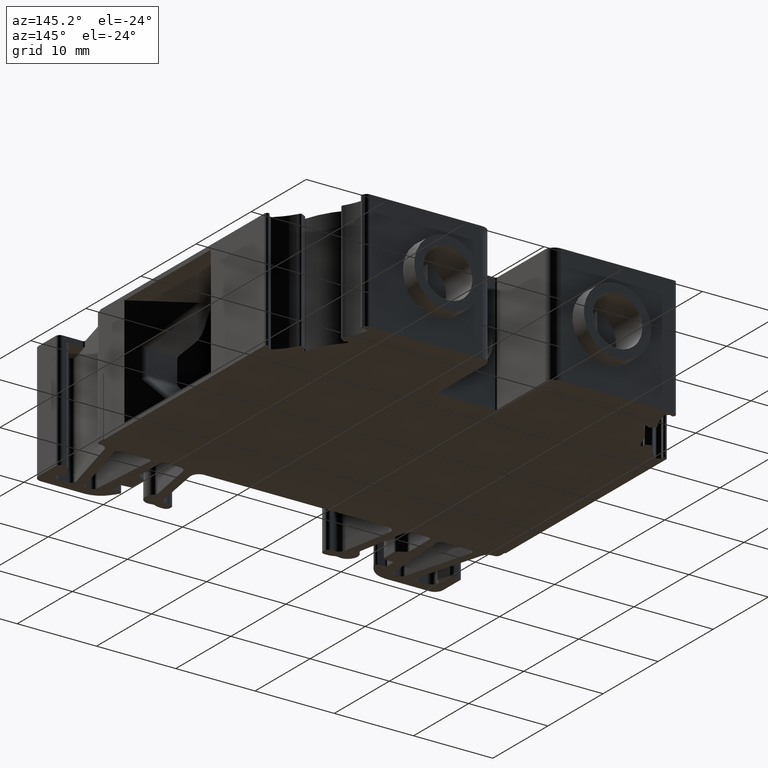
[diagram: clean part render]
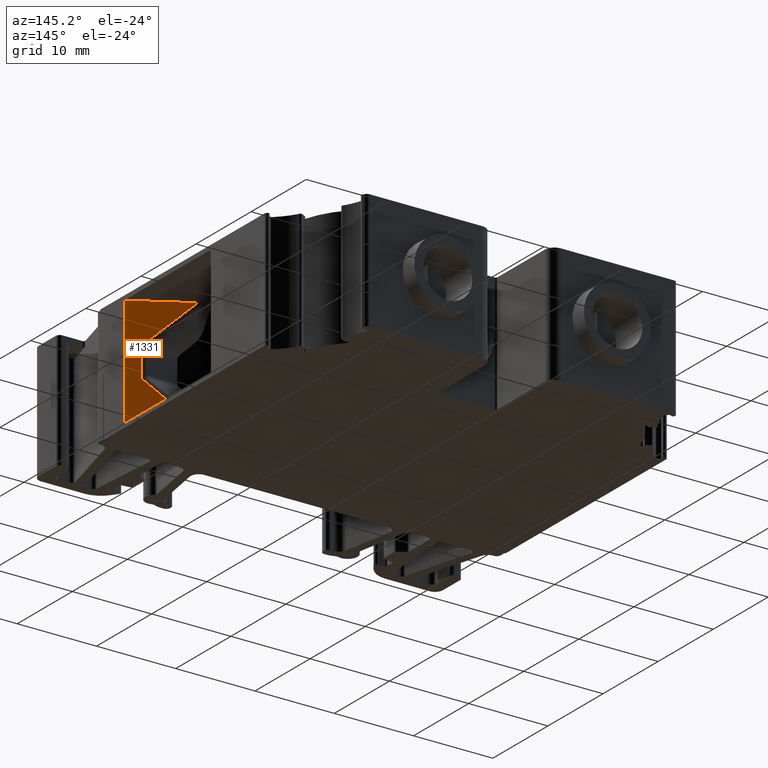
[diagram: same view with one face highlighted and labeled with its STEP entity id]
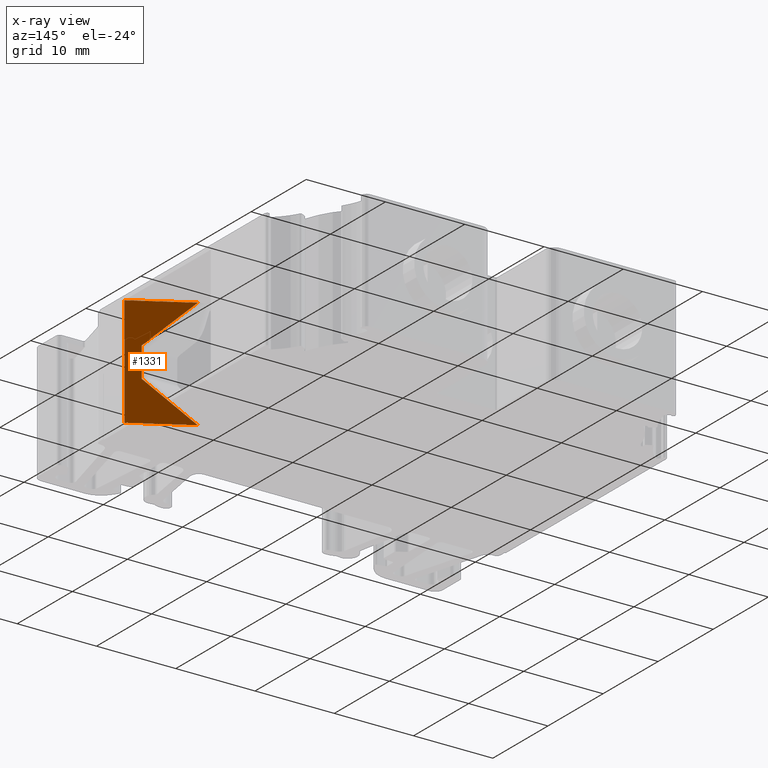
[diagram: x-ray of the same camera — body ghosted, the highlighted face saturated]
A machine part, auxiliary view. The second image highlights one B-rep face of the part: STEP entity #1331.
The next image is the same camera in x-ray: the body ghosted, the highlighted face saturated — about 0% of this face is hidden behind the body in this view.
In plain terms, the highlighted planar face has unit normal (-0.5, -0.866, -0).
Its self-contained STEP definition (entity closure, byte-faithful):
#1331 = ADVANCED_FACE ( 'NONE', ( #6271 ), #6295, .F. ) ;
#6147 = VERTEX_POINT ( 'NONE', #17631 ) ;
#6150 = VERTEX_POINT ( 'NONE', #17590 ) ;
#6164 = VERTEX_POINT ( 'NONE', #17639 ) ;
#6166 = VERTEX_POINT ( 'NONE', #17625 ) ;
#6200 = VERTEX_POINT ( 'NONE', #17671 ) ;
#6203 = VERTEX_POINT ( 'NONE', #17665 ) ;
#6271 = FACE_OUTER_BOUND ( 'NONE', #15905, .T. ) ;
#6277 = DIRECTION ( 'NONE',  ( -0.5000004159633727500, -0.8660251636277402900, -7.896553443704513200E-015 ) ) ;
#6284 = DIRECTION ( 'NONE',  ( -0.8660251636277401800, 0.5000004159633726400, -5.457377375975005400E-014 ) ) ;
#6295 = PLANE ( 'NONE',  #10245 ) ;
#6315 = CARTESIAN_POINT ( 'NONE',  ( -287.2475440181245300, 298.2488967356334800, -500144.5709479770200 ) ) ;
#8619 = VECTOR ( 'NONE', #15396, 1000.000000000000000 ) ;
#8664 = VECTOR ( 'NONE', #14045, 1000.000000000000200 ) ;
#8672 = VECTOR ( 'NONE', #14120, 1000.000000000000200 ) ;
#8682 = VECTOR ( 'NONE', #14028, 999.9999999999998900 ) ;
#8723 = VECTOR ( 'NONE', #14202, 1000.000000000000000 ) ;
#8757 = VECTOR ( 'NONE', #14254, 1000.000000000000000 ) ;
#10245 = AXIS2_PLACEMENT_3D ( 'NONE', #6315, #6277, #6284 ) ;
#12892 = ORIENTED_EDGE ( 'NONE', *, *, #20043, .T. ) ;
#12897 = ORIENTED_EDGE ( 'NONE', *, *, #19979, .F. ) ;
#12906 = ORIENTED_EDGE ( 'NONE', *, *, #19982, .F. ) ;
#12919 = ORIENTED_EDGE ( 'NONE', *, *, #20041, .T. ) ;
#12922 = ORIENTED_EDGE ( 'NONE', *, *, #19988, .F. ) ;
#12932 = ORIENTED_EDGE ( 'NONE', *, *, #20019, .T. ) ;
#14028 = DIRECTION ( 'NONE',  ( -0.6546532557563598000, 0.3779646526883859200, -0.6546539819215537700 ) ) ;
#14044 = CARTESIAN_POINT ( 'NONE',  ( -287.9334908624885500, 298.6449287656100200, -91.34017196369650500 ) ) ;
#14045 = DIRECTION ( 'NONE',  ( -0.8660251636277344100, 0.5000004159633827400, -5.631951544047806100E-014 ) ) ;
#14051 = LINE ( 'NONE', #14044, #8664 ) ;
#14063 = CARTESIAN_POINT ( 'NONE',  ( -214590.3987446450000, 124026.3681741469900, -214407.1944888095000 ) ) ;
#14090 = LINE ( 'NONE', #14119, #8672 ) ;
#14119 = CARTESIAN_POINT ( 'NONE',  ( -287.9334908624880400, 298.6449287656095100, -105.2401719637022000 ) ) ;
#14120 = DIRECTION ( 'NONE',  ( -0.8660251636277344100, 0.5000004159633827400, -5.282803207919526200E-014 ) ) ;
#14165 = LINE ( 'NONE', #14175, #8723 ) ;
#14175 = CARTESIAN_POINT ( 'NONE',  ( -214590.3987446670100, 124026.3681741558100, 214210.6141448549800 ) ) ;
#14202 = DIRECTION ( 'NONE',  ( -0.6546532557564270800, 0.3779646526884125100, 0.6546539819214710600 ) ) ;
#14228 = CARTESIAN_POINT ( 'NONE',  ( -282.0692912654629900, 295.2592277941470200, -33.30669032135109800 ) ) ;
#14252 = LINE ( 'NONE', #14228, #8757 ) ;
#14254 = DIRECTION ( 'NONE',  ( 1.024210827134004000E-013, -5.001474822622270500E-014, -1.000000000000000000 ) ) ;
#15317 = CARTESIAN_POINT ( 'NONE',  ( -283.6337588233710100, 296.1624745663170300, -500144.5709479770200 ) ) ;
#15386 = LINE ( 'NONE', #15317, #8619 ) ;
#15396 = DIRECTION ( 'NONE',  ( 8.662798896448839300E-014, -4.089659118477335300E-014, -1.000000000000000000 ) ) ;
#15406 = LINE ( 'NONE', #14063, #8682 ) ;
#15905 = EDGE_LOOP ( 'NONE', ( #12919, #12906, #12892, #12932, #12922, #12897 ) ) ;
#17590 = CARTESIAN_POINT ( 'NONE',  ( -283.6337588666885400, 296.1624745867670200, -100.1917861752880000 ) ) ;
#17625 = CARTESIAN_POINT ( 'NONE',  ( -288.6821390552844900, 299.0771614806799900, -105.2401719637794000 ) ) ;
#17631 = CARTESIAN_POINT ( 'NONE',  ( -282.0692912654554900, 295.2592277941435000, -105.2401719637018000 ) ) ;
#17639 = CARTESIAN_POINT ( 'NONE',  ( -288.6821390551639900, 299.0771614806730000, -91.34017196366529800 ) ) ;
#17665 = CARTESIAN_POINT ( 'NONE',  ( -282.0692912654565100, 295.2592277941440100, -91.34017196369610800 ) ) ;
#17671 = CARTESIAN_POINT ( 'NONE',  ( -283.6337588666889900, 296.1624745867670200, -96.38855775211010300 ) ) ;
#19979 = EDGE_CURVE ( 'NONE', #6200, #6150, #15386, .T. ) ;
#19982 = EDGE_CURVE ( 'NONE', #6203, #6164, #14051, .T. ) ;
#19988 = EDGE_CURVE ( 'NONE', #6150, #6166, #15406, .T. ) ;
#20019 = EDGE_CURVE ( 'NONE', #6147, #6166, #14090, .T. ) ;
#20041 = EDGE_CURVE ( 'NONE', #6200, #6164, #14165, .T. ) ;
#20043 = EDGE_CURVE ( 'NONE', #6203, #6147, #14252, .T. ) ;